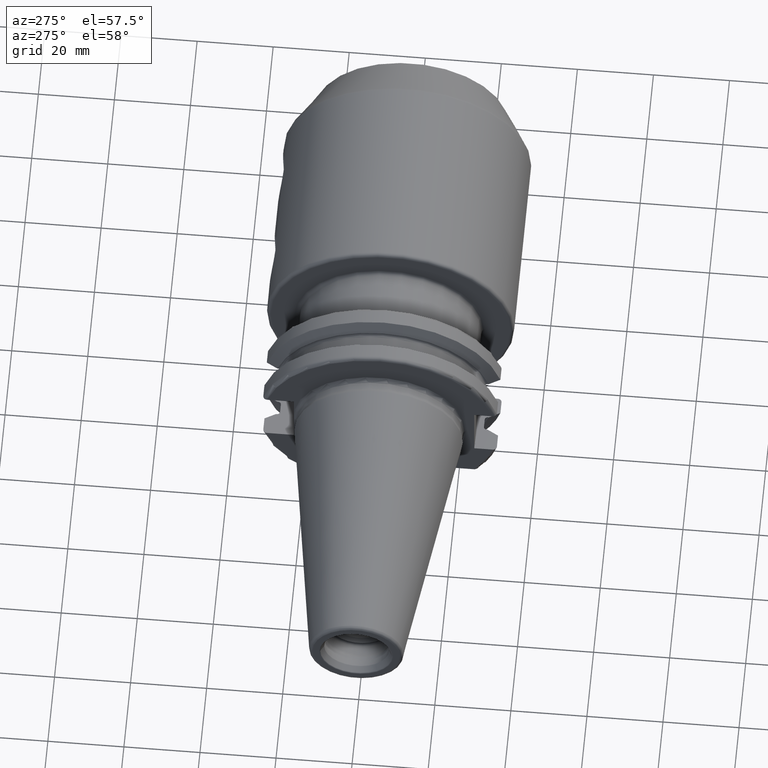
[diagram: clean part render]
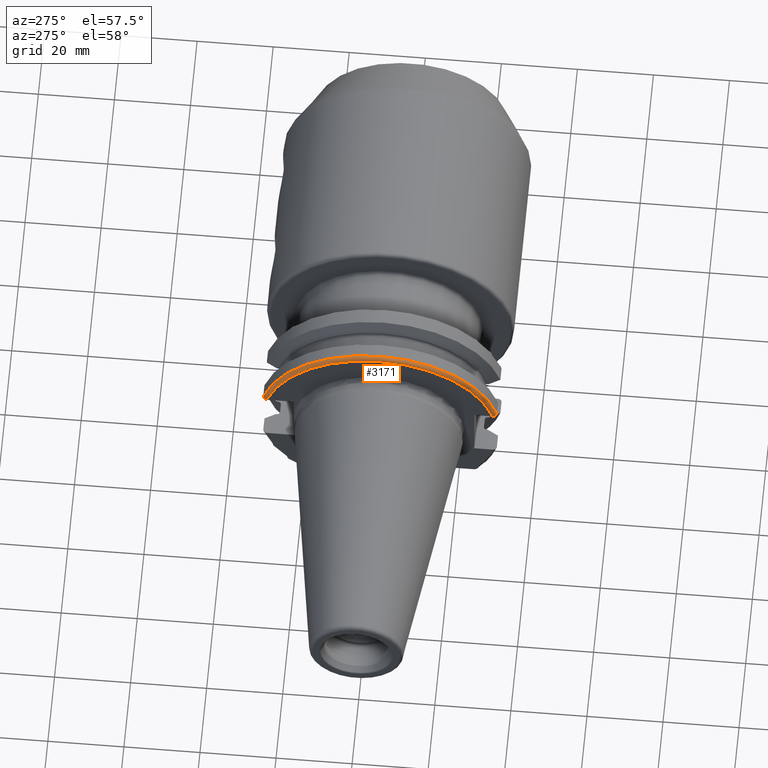
[diagram: same view with one face highlighted and labeled with its STEP entity id]
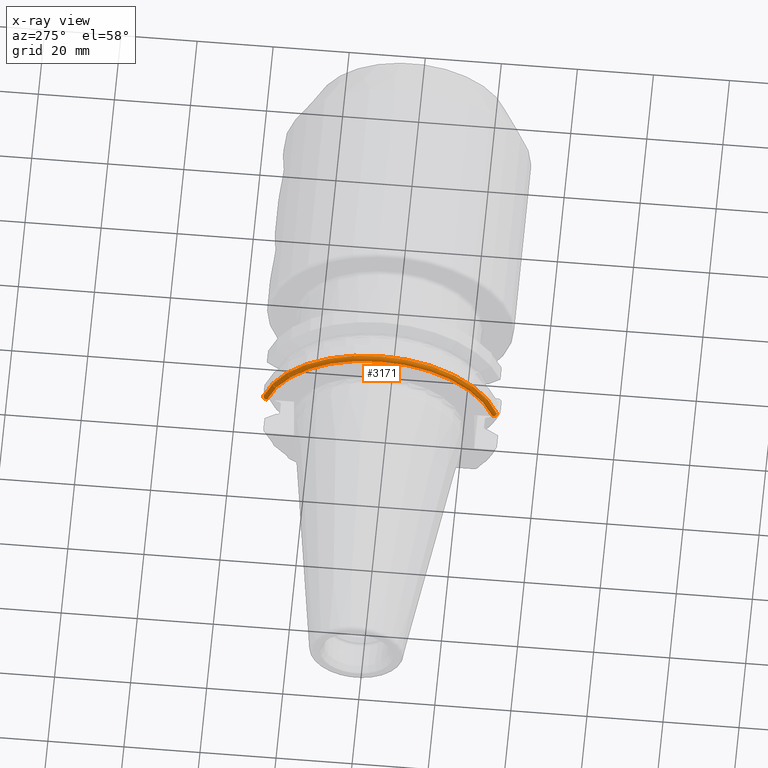
[diagram: x-ray of the same camera — body ghosted, the highlighted face saturated]
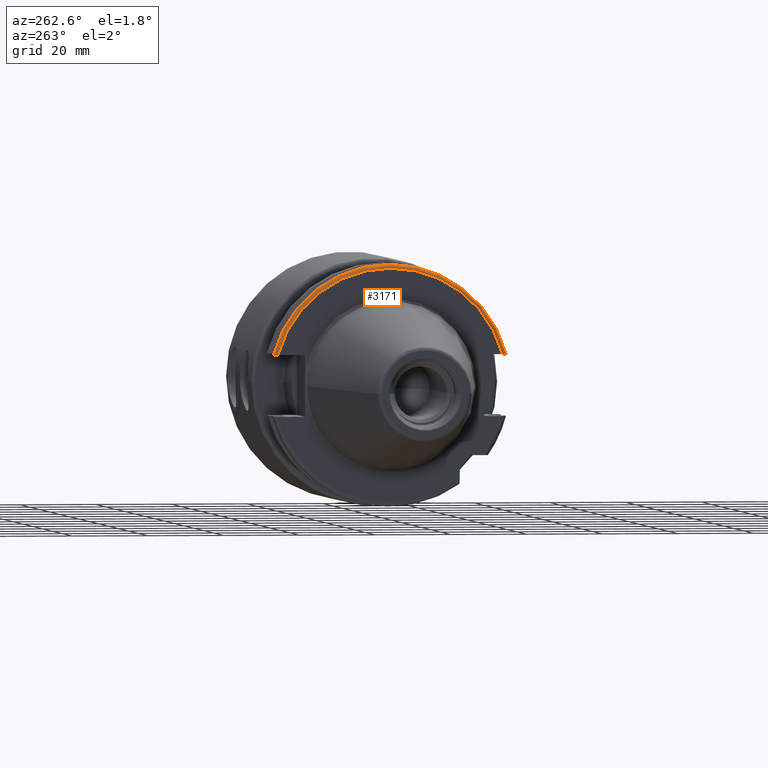
[diagram: same view with one face highlighted and labeled with its STEP entity id]
A machine part, auxiliary view. The second image highlights one B-rep face of the part: STEP entity #3171.
The next image is the same camera in x-ray: the body ghosted, the highlighted face saturated — about 0% of this face is hidden behind the body in this view.
A second angle (auxiliary view) of the same face is appended — the face is thin or edge-on in the first view.
In plain terms, the highlighted toroidal blend (fillet) surface has major radius 30.7625 mm and minor (blend) radius 1 mm.
Its self-contained STEP definition (entity closure, byte-faithful):
#912=CARTESIAN_POINT('',(3.2E0,0.E0,0.E0));
#913=DIRECTION('',(1.E0,0.E0,0.E0));
#914=DIRECTION('',(0.E0,9.647119303464E-1,2.633075985372E-1));
#915=AXIS2_PLACEMENT_3D('',#912,#913,#914);
#1338=CARTESIAN_POINT('',(4.2E0,3.071231684927E1,8.1E0));
#1339=CARTESIAN_POINT('',(4.122975496592E0,3.071231684927E1,8.1E0));
#1340=CARTESIAN_POINT('',(3.973434275890E0,3.069445502310E1,8.1E0));
#1341=CARTESIAN_POINT('',(3.757148362145E0,3.061539366421E1,8.1E0));
#1342=CARTESIAN_POINT('',(3.565367695912E0,3.048860164744E1,8.1E0));
#1343=CARTESIAN_POINT('',(3.407348762296E0,3.032249788839E1,8.1E0));
#1344=CARTESIAN_POINT('',(3.289450816159E0,3.012561805664E1,8.1E0));
#1345=CARTESIAN_POINT('',(3.216670609282E0,2.990711670215E1,8.1E0));
#1346=CARTESIAN_POINT('',(3.2E0,2.975517161523E1,8.1E0));
#1347=CARTESIAN_POINT('',(3.2E0,2.967695075728E1,8.1E0));
#1349=CARTESIAN_POINT('',(4.2E0,0.E0,0.E0));
#1350=DIRECTION('',(1.E0,0.E0,0.E0));
#1351=DIRECTION('',(0.E0,9.669363825036E-1,2.550177095632E-1));
#1352=AXIS2_PLACEMENT_3D('',#1349,#1350,#1351);
#1354=CARTESIAN_POINT('',(3.2E0,-2.967695075728E1,8.1E0));
#1355=CARTESIAN_POINT('',(3.2E0,-2.975535829664E1,8.1E0));
#1356=CARTESIAN_POINT('',(3.216736704136E0,-2.990767511790E1,8.1E0));
#1357=CARTESIAN_POINT('',(3.290003023403E0,-3.012696803037E1,8.1E0));
#1358=CARTESIAN_POINT('',(3.408578685874E0,-3.032415560769E1,8.1E0));
#1359=CARTESIAN_POINT('',(3.566974678455E0,-3.048991705446E1,8.1E0));
#1360=CARTESIAN_POINT('',(3.758498450120E0,-3.061600082070E1,8.1E0));
#1361=CARTESIAN_POINT('',(3.973995795704E0,-3.069452712052E1,8.1E0));
#1362=CARTESIAN_POINT('',(4.123165215148E0,-3.071231684927E1,8.1E0));
#1363=CARTESIAN_POINT('',(4.2E0,-3.071231684927E1,8.1E0));
#1717=CARTESIAN_POINT('',(4.2E0,3.071231684927E1,8.1E0));
#1718=VERTEX_POINT('',#1717);
#1721=CARTESIAN_POINT('',(4.2E0,-3.071231684927E1,8.1E0));
#1722=VERTEX_POINT('',#1721);
#1725=CARTESIAN_POINT('',(3.2E0,2.967695075728E1,8.1E0));
#1727=VERTEX_POINT('',#1725);
#1743=CARTESIAN_POINT('',(3.2E0,-2.967695075728E1,8.1E0));
#1744=VERTEX_POINT('',#1743);
#3160=CARTESIAN_POINT('',(4.2E0,0.E0,0.E0));
#3161=DIRECTION('',(1.E0,0.E0,0.E0));
#3162=DIRECTION('',(0.E0,-1.E0,0.E0));
#3163=AXIS2_PLACEMENT_3D('',#3160,#3161,#3162);
#3164=TOROIDAL_SURFACE('',#3163,3.07625E1,1.E0);
#3165=ORIENTED_EDGE('',*,*,#2080,.F.);
#3166=ORIENTED_EDGE('',*,*,#2744,.T.);
#3167=ORIENTED_EDGE('',*,*,#2794,.F.);
#3168=ORIENTED_EDGE('',*,*,#2833,.F.);
#3169=EDGE_LOOP('',(#3165,#3166,#3167,#3168));
#3170=FACE_OUTER_BOUND('',#3169,.F.);
#3171=ADVANCED_FACE('',(#3170),#3164,.T.);
#916=CIRCLE('',#915,3.07625E1);
#1348=B_SPLINE_CURVE_WITH_KNOTS('',3,(#1338,#1339,#1340,#1341,#1342,#1343,#1344,
#1345,#1346,#1347),.UNSPECIFIED.,.F.,.F.,(4,1,1,1,1,1,1,4),(0.E0,
1.428571428571E-1,2.857142857143E-1,4.285714285714E-1,5.714285714286E-1,
7.142857142857E-1,8.571428571429E-1,1.E0),.UNSPECIFIED.);
#1353=CIRCLE('',#1352,3.17625E1);
#1364=B_SPLINE_CURVE_WITH_KNOTS('',3,(#1354,#1355,#1356,#1357,#1358,#1359,#1360,
#1361,#1362,#1363),.UNSPECIFIED.,.F.,.F.,(4,1,1,1,1,1,1,4),(0.E0,
1.428571428571E-1,2.857142857143E-1,4.285714285714E-1,5.714285714286E-1,
7.142857142857E-1,8.571428571429E-1,1.E0),.UNSPECIFIED.);
#2080=EDGE_CURVE('',#1718,#1727,#1348,.T.);
#2744=EDGE_CURVE('',#1718,#1722,#1353,.T.);
#2794=EDGE_CURVE('',#1744,#1722,#1364,.T.);
#2833=EDGE_CURVE('',#1727,#1744,#916,.T.);